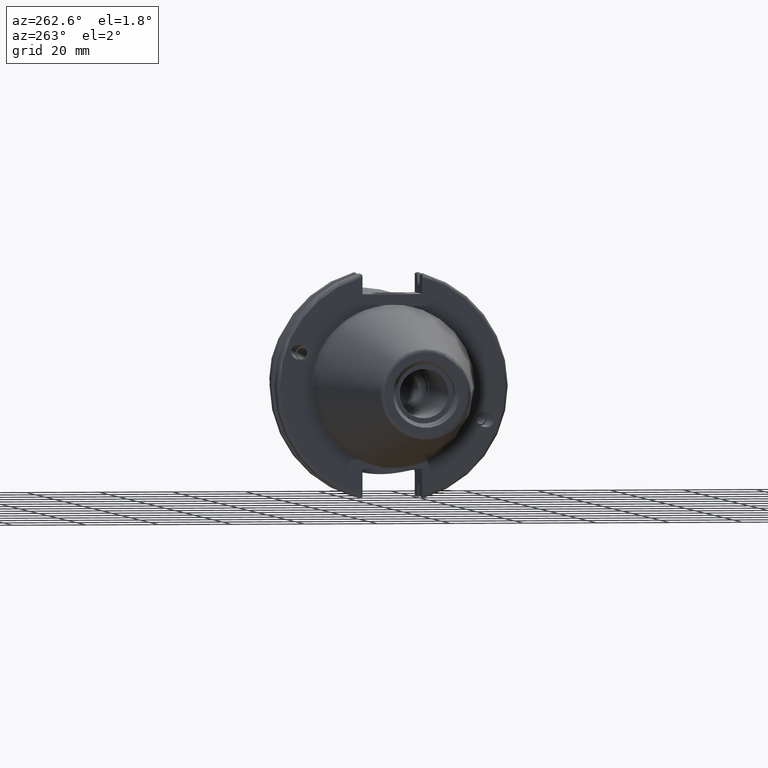
[diagram: clean part render]
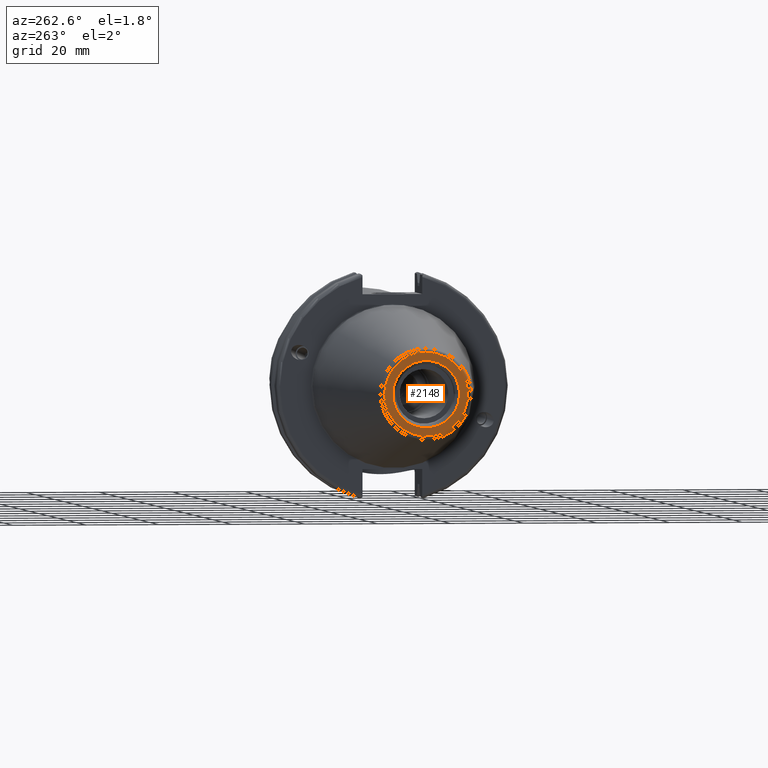
[diagram: same view with one face highlighted and labeled with its STEP entity id]
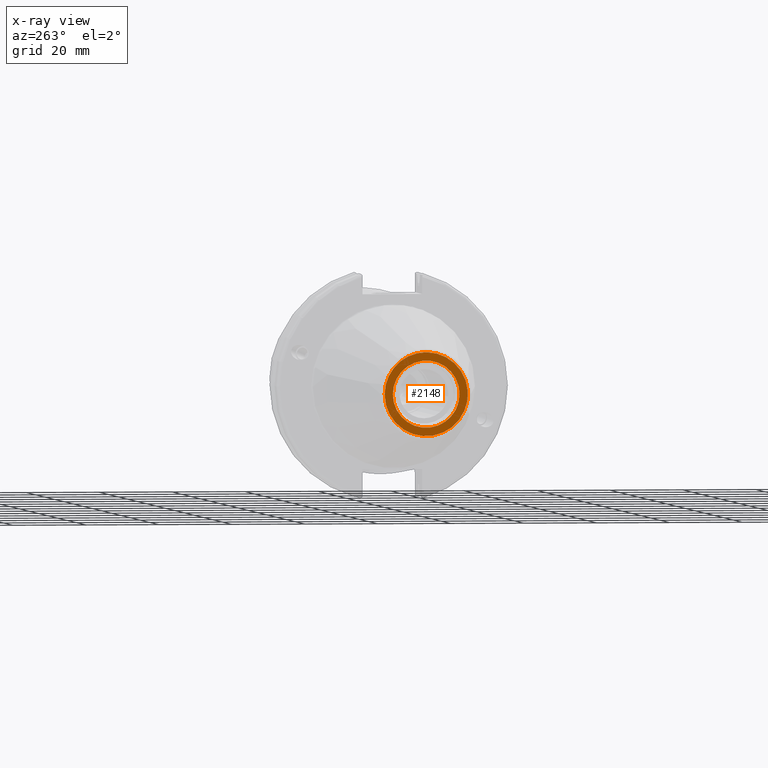
[diagram: x-ray of the same camera — body ghosted, the highlighted face saturated]
A machine part, auxiliary view. The second image highlights one B-rep face of the part: STEP entity #2148.
The next image is the same camera in x-ray: the body ghosted, the highlighted face saturated — about 0% of this face is hidden behind the body in this view.
In plain terms, the highlighted planar face has unit normal (-1, 0, 0).
Its self-contained STEP definition (entity closure, byte-faithful):
#70=PLANE('',#2452);
#132=FACE_BOUND('',#368,.T.);
#249=FACE_OUTER_BOUND('',#367,.T.);
#367=EDGE_LOOP('',(#1896,#1897));
#368=EDGE_LOOP('',(#1898,#1899));
#741=CIRCLE('',#2449,11.4071305970304);
#742=CIRCLE('',#2450,11.4071305970304);
#744=CIRCLE('',#2453,9.15);
#745=CIRCLE('',#2454,9.15);
#989=VERTEX_POINT('',#4153);
#990=VERTEX_POINT('',#4155);
#991=VERTEX_POINT('',#4160);
#992=VERTEX_POINT('',#4161);
#1311=EDGE_CURVE('',#989,#990,#741,.T.);
#1312=EDGE_CURVE('',#990,#989,#742,.T.);
#1314=EDGE_CURVE('',#991,#992,#744,.T.);
#1315=EDGE_CURVE('',#992,#991,#745,.T.);
#1896=ORIENTED_EDGE('',*,*,#1312,.F.);
#1897=ORIENTED_EDGE('',*,*,#1311,.F.);
#1898=ORIENTED_EDGE('',*,*,#1314,.T.);
#1899=ORIENTED_EDGE('',*,*,#1315,.T.);
#2148=ADVANCED_FACE('',(#249,#132),#70,.T.);
#2449=AXIS2_PLACEMENT_3D('',#4156,#3092,#3093);
#2450=AXIS2_PLACEMENT_3D('',#4157,#3094,#3095);
#2452=AXIS2_PLACEMENT_3D('',#4159,#3098,#3099);
#2453=AXIS2_PLACEMENT_3D('',#4162,#3100,#3101);
#2454=AXIS2_PLACEMENT_3D('',#4163,#3102,#3103);
#3092=DIRECTION('center_axis',(1.,0.,0.));
#3093=DIRECTION('ref_axis',(0.,-1.,1.83697019872103E-16));
#3094=DIRECTION('center_axis',(1.,0.,0.));
#3095=DIRECTION('ref_axis',(0.,-1.,1.83697019872103E-16));
#3098=DIRECTION('center_axis',(-1.,0.,0.));
#3099=DIRECTION('ref_axis',(0.,0.,1.));
#3100=DIRECTION('center_axis',(1.,0.,0.));
#3101=DIRECTION('ref_axis',(0.,0.,-1.));
#3102=DIRECTION('center_axis',(1.,0.,0.));
#3103=DIRECTION('ref_axis',(0.,0.,-1.));
#4153=CARTESIAN_POINT('',(-68.25,-1.39697059731091E-15,11.4071305970304));
#4155=CARTESIAN_POINT('',(-68.25,11.4071305970304,-6.98485298655456E-16));
#4156=CARTESIAN_POINT('Origin',(-68.25,0.,0.));
#4157=CARTESIAN_POINT('Origin',(-68.25,0.,0.));
#4159=CARTESIAN_POINT('Origin',(-68.25,12.271875,0.));
#4160=CARTESIAN_POINT('',(-68.25,9.15,0.));
#4161=CARTESIAN_POINT('',(-68.25,-9.15,-1.12055182121983E-15));
#4162=CARTESIAN_POINT('Origin',(-68.25,0.,0.));
#4163=CARTESIAN_POINT('Origin',(-68.25,0.,0.));